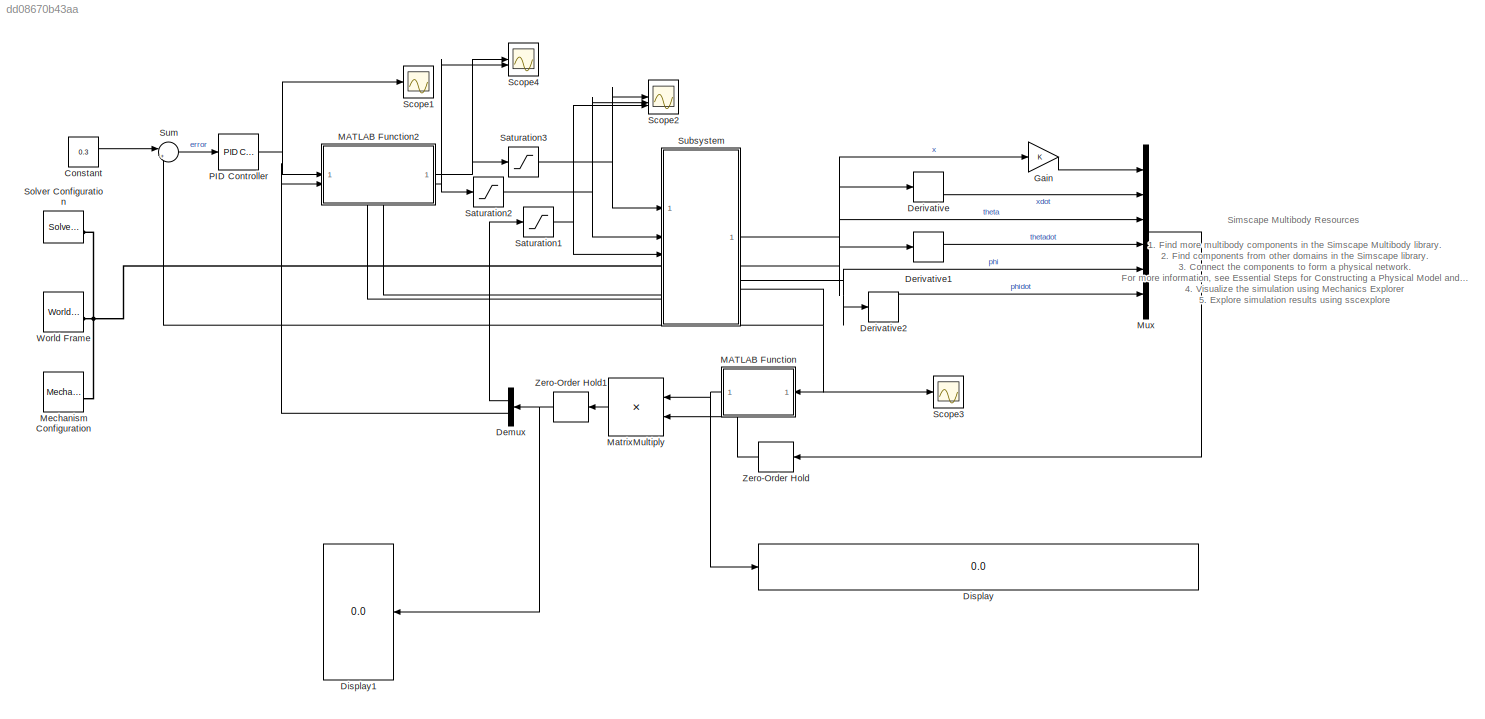
MODEL slx_dd08670b43aa
KIND model
CONFIG AbsTol = 1e-3
CONFIG EnableMultiTasking = on
CONFIG FixedStep = auto
CONFIG MaxStep = auto
CONFIG MinStep = auto
CONFIG RelTol = 1e-3
CONFIG SampleTimeConstraint = Unconstrained
CONFIG SolverName = VariableStepAuto
CONFIG StartTime = 0.0
CONFIG StopTime = 20.0
BLOCK [Constant] Constant
  Value = 0.3
BLOCK [Demux] Demux
  Outputs = 2
BLOCK [Derivative] Derivative
BLOCK [Derivative] Derivative1
BLOCK [Derivative] Derivative2
BLOCK [Display] Display
  Decimation = 1
BLOCK [Display] Display1
  Decimation = 1
BLOCK [Gain] Gain
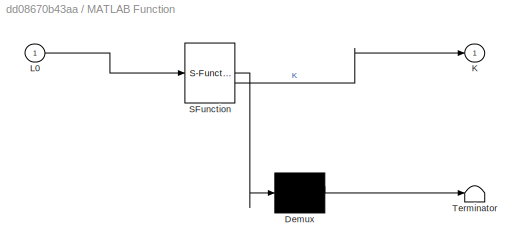
BLOCK [SubSystem] MATLAB Function
  ErrorFcn = Stateflow.Translate.translate
  NameLocation = top
  PermitHierarchicalResolution = ExplicitOnly
  SFBlockType = MATLAB Function
  TreatAsAtomicUnit = on
BLOCK [Demux] MATLAB Function/ Demux 
  Outputs = 1
BLOCK [S-Function] MATLAB Function/ SFunction 
  EnableBusSupport = on
  FunctionName = sf_sfun
  PortCounts = [1 2]
  SFcnIsStateOwnerBlock = off
  SFunctionDeploymentMode = off
  Tag = Stateflow S-Function 2
BLOCK [Terminator] MATLAB Function/ Terminator 
BLOCK [Outport] MATLAB Function/K
BLOCK [Inport] MATLAB Function/L0
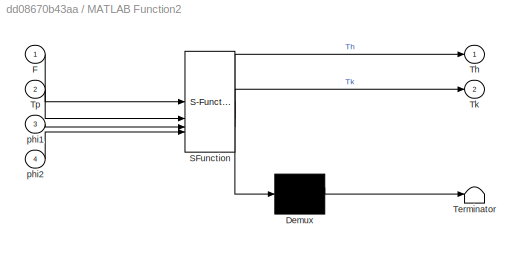
BLOCK [SubSystem] MATLAB Function2
  ErrorFcn = Stateflow.Translate.translate
  PermitHierarchicalResolution = ExplicitOnly
  SFBlockType = MATLAB Function
  TreatAsAtomicUnit = on
BLOCK [Demux] MATLAB Function2/ Demux 
  Outputs = 1
BLOCK [S-Function] MATLAB Function2/ SFunction 
  EnableBusSupport = on
  FunctionName = sf_sfun
  PortCounts = [4 3]
  SFcnIsStateOwnerBlock = off
  SFunctionDeploymentMode = off
  Tag = Stateflow S-Function 3
BLOCK [Terminator] MATLAB Function2/ Terminator 
BLOCK [Inport] MATLAB Function2/F
BLOCK [Outport] MATLAB Function2/Th
BLOCK [Outport] MATLAB Function2/Tk
  Port = 2
BLOCK [Inport] MATLAB Function2/Tp
  Port = 2
BLOCK [Inport] MATLAB Function2/phi1
  Port = 3
BLOCK [Inport] MATLAB Function2/phi2
  Port = 4
BLOCK [Product] MatrixMultiply
  Multiplication = Matrix(*)
BLOCK [Reference] Mechanism Configuration  REF=sm_lib/Utilities/Mechanism
Configuration
  SourceBlock = sm_lib/Utilities/Mechanism\nConfiguration
  SourceType = Mechanism\nConfiguration
BLOCK [Mux] Mux
  DisplayOption = bar
  Inputs = 6
BLOCK [Reference] PID Controller  REF=slpidlib/PID Controller
  LibrarySourceBlock = simulink/Continuous/PID Controller
  SourceBlock = slpidlib/PID Controller
  SourceType = PID 1dof
BLOCK [Saturate] Saturation1
  LowerLimit = -4
  UpperLimit = 4
BLOCK [Saturate] Saturation2
  LowerLimit = -15
  UpperLimit = 15
BLOCK [Saturate] Saturation3
  LowerLimit = -15
  UpperLimit = 15
BLOCK [Scope] Scope1
  Floating = off
  NumInputPorts = 1
  ScopeSpecificationString = Simulink.scopes.TimeScopeBlockCfg('CurrentConfiguration', extmgr.ConfigurationSet(extmgr.Configuration('Core','General UI',true),extmgr.Configuration('Core','Source UI',true),extmgr.Configuration('Sources','WiredSimulink',true,'DataLoggingVariableName','ScopeData3'),extmgr.Configuration('Visuals','Time Domain',true,'SerializedDisplays',{struct('MinYLimReal','-60.96148','MaxYLimReal','5.57842','YLa...<+1495ch>
BLOCK [Scope] Scope2
  Floating = off
  NumInputPorts = 3
  ScopeSpecificationString = Simulink.scopes.TimeScopeBlockCfg('CurrentConfiguration', extmgr.ConfigurationSet(extmgr.Configuration('Core','General UI',true),extmgr.Configuration('Core','Source UI',true),extmgr.Configuration('Sources','WiredSimulink',true,'DataLoggingVariableName','ScopeData4'),extmgr.Configuration('Visuals','Time Domain',true,'SerializedDisplays',{struct('MinYLimReal','-3.54061','MaxYLimReal','6.54795','YLab...<+1494ch>
BLOCK [Scope] Scope3
  Floating = off
  NumInputPorts = 1
  ScopeSpecificationString = Simulink.scopes.TimeScopeBlockCfg('CurrentConfiguration', extmgr.ConfigurationSet(extmgr.Configuration('Core','General UI',true),extmgr.Configuration('Core','Source UI',true),extmgr.Configuration('Sources','WiredSimulink',true,'DataLoggingVariableName','ScopeData1'),extmgr.Configuration('Visuals','Time Domain',true,'SerializedDisplays',{struct('MinYLimReal','-0.01248','MaxYLimReal','0.6125','YLabe...<+1506ch>
BLOCK [Scope] Scope4
  Floating = off
  NumInputPorts = 2
  ScopeSpecificationString = Simulink.scopes.TimeScopeBlockCfg('CurrentConfiguration', extmgr.ConfigurationSet(extmgr.Configuration('Core','General UI',true),extmgr.Configuration('Core','Source UI',true),extmgr.Configuration('Sources','WiredSimulink',true,'DataLoggingVariableName','ScopeData1'),extmgr.Configuration('Visuals','Time Domain',true,'SerializedDisplays',{struct('MinYLimReal','-2926.03685','MaxYLimReal','2803.45519'...<+1543ch>
BLOCK [Reference] Solver Configuration  REF=nesl_utility/Solver
Configuration
  SourceBlock = nesl_utility/Solver\nConfiguration
  SourceType = Solver\nConfiguration
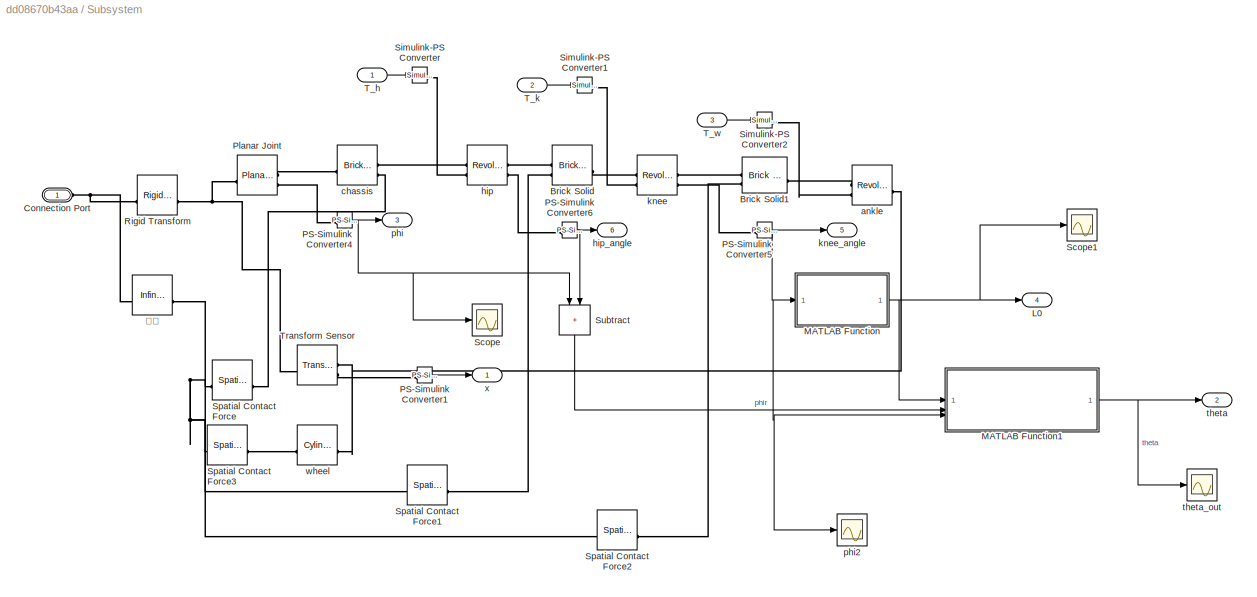
BLOCK [SubSystem] Subsystem
  PortSchema = {"entries":[{"content":{"sides":[{"content":{"connectorIds":["In1","In2","In3","Out5","Out6","LConn1"]},"type":"ConnectorPlacement.EquallySpacedRectSide","uuid":"1748e4b1-1b4d-479e-bbe5-0ce40ec74b27"},{"content":{"connectorIds":["Out1","Out2","Out3","Out4"],"side":"RIGHT"},"type":"ConnectorPlacement.EquallySpacedRectSide","uuid":"fc36e808-e030-49cf-8e60-2e10c8c8424d"},{"content":{"side":"TOP"},"ty...<+278ch>
BLOCK [Reference] Subsystem/Brick Solid  REF=sm_lib/Body Elements/Brick Solid
  SourceBlock = sm_lib/Body Elements/Brick Solid
  SourceType = Brick Solid
BLOCK [Reference] Subsystem/Brick Solid1  REF=sm_lib/Body Elements/Brick Solid
  SourceBlock = sm_lib/Body Elements/Brick Solid
  SourceType = Brick Solid
BLOCK [PMIOPort] Subsystem/Connection Port
  Side = Left
BLOCK [Outport] Subsystem/L0
  Port = 4
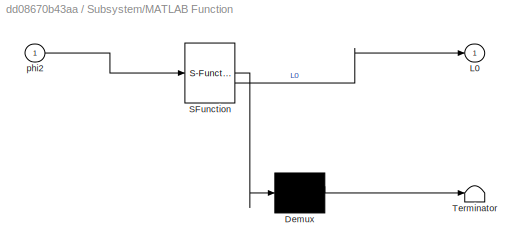
BLOCK [SubSystem] Subsystem/MATLAB Function
  ErrorFcn = Stateflow.Translate.translate
  PermitHierarchicalResolution = ExplicitOnly
  SFBlockType = MATLAB Function
  TreatAsAtomicUnit = on
BLOCK [Demux] Subsystem/MATLAB Function/ Demux 
  Outputs = 1
BLOCK [S-Function] Subsystem/MATLAB Function/ SFunction 
  EnableBusSupport = on
  FunctionName = sf_sfun
  PortCounts = [1 2]
  SFcnIsStateOwnerBlock = off
  SFunctionDeploymentMode = off
  Tag = Stateflow S-Function 4
BLOCK [Terminator] Subsystem/MATLAB Function/ Terminator 
BLOCK [Outport] Subsystem/MATLAB Function/L0
BLOCK [Inport] Subsystem/MATLAB Function/phi2
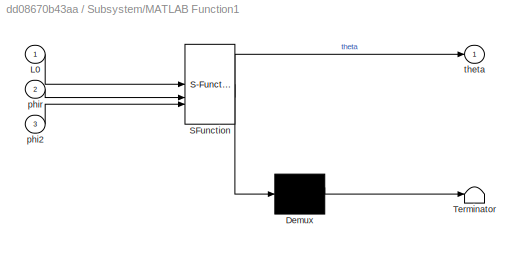
BLOCK [SubSystem] Subsystem/MATLAB Function1
  ErrorFcn = Stateflow.Translate.translate
  PermitHierarchicalResolution = ExplicitOnly
  SFBlockType = MATLAB Function
  TreatAsAtomicUnit = on
BLOCK [Demux] Subsystem/MATLAB Function1/ Demux 
  Outputs = 1
BLOCK [S-Function] Subsystem/MATLAB Function1/ SFunction 
  EnableBusSupport = on
  FunctionName = sf_sfun
  PortCounts = [3 2]
  SFcnIsStateOwnerBlock = off
  SFunctionDeploymentMode = off
  Tag = Stateflow S-Function 5
BLOCK [Terminator] Subsystem/MATLAB Function1/ Terminator 
BLOCK [Inport] Subsystem/MATLAB Function1/L0
BLOCK [Inport] Subsystem/MATLAB Function1/phi2
  Port = 3
BLOCK [Inport] Subsystem/MATLAB Function1/phir
  Port = 2
BLOCK [Outport] Subsystem/MATLAB Function1/theta
BLOCK [Reference] Subsystem/PS-Simulink Converter1  REF=nesl_utility/PS-Simulink
Converter
  SourceBlock = nesl_utility/PS-Simulink\nConverter
  SourceType = PS-Simulink\nConverter
BLOCK [Reference] Subsystem/PS-Simulink Converter4  REF=nesl_utility/PS-Simulink
Converter
  SourceBlock = nesl_utility/PS-Simulink\nConverter
  SourceType = PS-Simulink\nConverter
BLOCK [Reference] Subsystem/PS-Simulink Converter5  REF=nesl_utility/PS-Simulink
Converter
  SourceBlock = nesl_utility/PS-Simulink\nConverter
  SourceType = PS-Simulink\nConverter
BLOCK [Reference] Subsystem/PS-Simulink Converter6  REF=nesl_utility/PS-Simulink
Converter
  SourceBlock = nesl_utility/PS-Simulink\nConverter
  SourceType = PS-Simulink\nConverter
BLOCK [Reference] Subsystem/Planar Joint  REF=sm_lib/Joints/Planar Joint
  SourceBlock = sm_lib/Joints/Planar Joint
  SourceType = Planar Joint
BLOCK [Reference] Subsystem/Rigid Transform  REF=sm_lib/Frames and
Transforms/Rigid
Transform
  SourceBlock = sm_lib/Frames and\nTransforms/Rigid\nTransform
  SourceType = Rigid\nTransform
BLOCK [Scope] Subsystem/Scope
  Floating = off
  NumInputPorts = 1
  ScopeSpecificationString = Simulink.scopes.TimeScopeBlockCfg('CurrentConfiguration', extmgr.ConfigurationSet(extmgr.Configuration('Core','General UI',true),extmgr.Configuration('Core','Source UI',true),extmgr.Configuration('Sources','WiredSimulink',true,'DataLoggingVariableName','ScopeData1'),extmgr.Configuration('Visuals','Time Domain',true,'SerializedDisplays',{struct('MinYLimReal','-0.18101','MaxYLimReal','0.14256','YLab...<+1470ch>
BLOCK [Scope] Subsystem/Scope1
  Floating = off
  NumInputPorts = 1
  ScopeSpecificationString = Simulink.scopes.TimeScopeBlockCfg('CurrentConfiguration', extmgr.ConfigurationSet(extmgr.Configuration('Core','General UI',true),extmgr.Configuration('Core','Source UI',true),extmgr.Configuration('Sources','WiredSimulink',true,'DataLoggingVariableName','ScopeData2'),extmgr.Configuration('Visuals','Time Domain',true,'SerializedDisplays',{struct('MinYLimReal','-0.0125','MaxYLimReal','0.6125','YLabel...<+1508ch>
BLOCK [Reference] Subsystem/Simulink-PS Converter  REF=nesl_utility/Simulink-PS
Converter
  SourceBlock = nesl_utility/Simulink-PS\nConverter
  SourceType = Simulink-PS\nConverter
BLOCK [Reference] Subsystem/Simulink-PS Converter1  REF=nesl_utility/Simulink-PS
Converter
  SourceBlock = nesl_utility/Simulink-PS\nConverter
  SourceType = Simulink-PS\nConverter
BLOCK [Reference] Subsystem/Simulink-PS Converter2  REF=nesl_utility/Simulink-PS
Converter
  SourceBlock = nesl_utility/Simulink-PS\nConverter
  SourceType = Simulink-PS\nConverter
BLOCK [Reference] Subsystem/Spatial Contact Force  REF=sm_lib/Forces and
Torques/Spatial
Contact Force
  SourceBlock = sm_lib/Forces and\nTorques/Spatial\nContact Force
  SourceType = Spatial\nContact Force
BLOCK [Reference] Subsystem/Spatial Contact Force1  REF=sm_lib/Forces and
Torques/Spatial
Contact Force
  SourceBlock = sm_lib/Forces and\nTorques/Spatial\nContact Force
  SourceType = Spatial\nContact Force
BLOCK [Reference] Subsystem/Spatial Contact Force2  REF=sm_lib/Forces and
Torques/Spatial
Contact Force
  SourceBlock = sm_lib/Forces and\nTorques/Spatial\nContact Force
  SourceType = Spatial\nContact Force
BLOCK [Reference] Subsystem/Spatial Contact Force3  REF=sm_lib/Forces and
Torques/Spatial
Contact Force
  SourceBlock = sm_lib/Forces and\nTorques/Spatial\nContact Force
  SourceType = Spatial\nContact Force
BLOCK [Sum] Subsystem/Subtract
  IconShape = rectangular
  NameLocation = right
BLOCK [Inport] Subsystem/T_h
BLOCK [Inport] Subsystem/T_k
  Port = 2
BLOCK [Inport] Subsystem/T_w
  Port = 3
BLOCK [Reference] Subsystem/Transform Sensor  REF=sm_lib/Frames and
Transforms/Transform
Sensor
  SourceBlock = sm_lib/Frames and\nTransforms/Transform\nSensor
  SourceType = Transform\nSensor
BLOCK [Reference] Subsystem/ankle  REF=sm_lib/Joints/Revolute Joint
  SourceBlock = sm_lib/Joints/Revolute Joint
  SourceType = Revolute Joint
BLOCK [Reference] Subsystem/chassis  REF=sm_lib/Body Elements/Brick Solid
  SourceBlock = sm_lib/Body Elements/Brick Solid
  SourceType = Brick Solid
BLOCK [Reference] Subsystem/hip  REF=sm_lib/Joints/Revolute Joint
  SourceBlock = sm_lib/Joints/Revolute Joint
  SourceType = Revolute Joint
BLOCK [Outport] Subsystem/hip_angle
  Port = 6
BLOCK [Reference] Subsystem/knee  REF=sm_lib/Joints/Revolute Joint
  SourceBlock = sm_lib/Joints/Revolute Joint
  SourceType = Revolute Joint
BLOCK [Outport] Subsystem/knee_angle
  Port = 5
BLOCK [Outport] Subsystem/phi
  Port = 3
BLOCK [Scope] Subsystem/phi2
  Floating = off
  NumInputPorts = 1
  ScopeSpecificationString = Simulink.scopes.TimeScopeBlockCfg('CurrentConfiguration', extmgr.ConfigurationSet(extmgr.Configuration('Core','General UI',true),extmgr.Configuration('Core','Source UI',true),extmgr.Configuration('Sources','WiredSimulink',true,'DataLoggingVariableName','ScopeData2'),extmgr.Configuration('Visuals','Time Domain',true,'SerializedDisplays',{struct('MinYLimReal','1.78429','MaxYLimReal','2.45467','YLabe...<+1479ch>
BLOCK [Outport] Subsystem/theta
  Port = 2
BLOCK [Scope] Subsystem/theta_out
  Floating = off
  NumInputPorts = 1
  ScopeSpecificationString = Simulink.scopes.TimeScopeBlockCfg('CurrentConfiguration', extmgr.ConfigurationSet(extmgr.Configuration('Core','General UI',true),extmgr.Configuration('Core','Source UI',true),extmgr.Configuration('Sources','WiredSimulink',true,'DataLoggingVariableName','ScopeData1'),extmgr.Configuration('Visuals','Time Domain',true,'SerializedDisplays',{struct('MinYLimReal','-7.6652','MaxYLimReal','3.24117','YLabe...<+1497ch>
BLOCK [Reference] Subsystem/wheel  REF=sm_lib/Body Elements/Cylindrical Solid
  SourceBlock = sm_lib/Body Elements/Cylindrical Solid
  SourceType = Cylindrical Solid
BLOCK [Outport] Subsystem/x
BLOCK [Reference] Subsystem/地面  REF=sm_lib/Curves and Surfaces/Infinite Plane
  SourceBlock = sm_lib/Curves and Surfaces/Infinite Plane
  SourceType = Infinite Plane
BLOCK [Sum] Sum
  Inputs = |+-
BLOCK [Reference] World Frame  REF=sm_lib/Frames and
Transforms/World Frame
  SourceBlock = sm_lib/Frames and\nTransforms/World Frame
  SourceType = World Frame
BLOCK [ZeroOrderHold] Zero-Order Hold
  NameLocation = top
  SampleTime = 0.001
BLOCK [ZeroOrderHold] Zero-Order Hold1
  NameLocation = top
  SampleTime = 0.001
ANNOTATION (root): 1. Find more multibody components in the Simscape Multibody library . 2. Find components from other domains in the Simscape library . 3. Connect the components to form a physical network. For more information, see Essential Steps for Constructing a Physical Model and Creating a Multibody Model . 4. Visualize the simulation using Mechanics Explorer 5. Explore simulation results using sscexplore
ANNOTATION (root): Simscape Multibody Resources
LINE Constant:1 -> Sum:1
LINE Demux:1 -> Saturation1:1
LINE Demux:2 -> MATLAB Function2:2
LINE Derivative1:1 -> Mux:4
LINE Derivative2:1 -> Mux:6
LINE Derivative:1 -> Mux:2
LINE Gain:1 -> Mux:1
NET MATLAB Function2:1 -> Saturation3:1, Scope4:1
NET MATLAB Function2:2 -> Saturation2:1, Scope4:2
NET MATLAB Function:1 -> Display:1, MatrixMultiply:1
LINE MatrixMultiply:1 -> Zero-Order Hold1:1
LINE Mux:1 -> Zero-Order Hold:1
NET PID Controller:1 -> MATLAB Function2:1, Scope1:1
NET Saturation1:1 -> Scope2:3, Subsystem:3
NET Saturation2:1 -> Scope2:2, Subsystem:2
NET Saturation3:1 -> Scope2:1, Subsystem:1
NET Subsystem/MATLAB Function1:1 -> Subsystem/theta:1, Subsystem/theta_out:1
NET Subsystem/MATLAB Function:1 -> Subsystem/L0:1, Subsystem/MATLAB Function1:1, Subsystem/Scope1:1
LINE Subsystem/PS-Simulink Converter1:1 -> Subsystem/x:1
NET Subsystem/PS-Simulink Converter4:1 -> Subsystem/Scope:1, Subsystem/Subtract:1, Subsystem/phi:1
NET Subsystem/PS-Simulink Converter5:1 -> Subsystem/MATLAB Function1:3, Subsystem/MATLAB Function:1, Subsystem/knee_angle:1, Subsystem/phi2:1
NET Subsystem/PS-Simulink Converter6:1 -> Subsystem/Subtract:2, Subsystem/hip_angle:1
LINE Subsystem/Subtract:1 -> Subsystem/MATLAB Function1:2
LINE Subsystem/T_h:1 -> Subsystem/Simulink-PS Converter:1
LINE Subsystem/T_k:1 -> Subsystem/Simulink-PS Converter1:1
LINE Subsystem/T_w:1 -> Subsystem/Simulink-PS Converter2:1
NET Subsystem:1 -> Derivative:1, Gain:1
NET Subsystem:2 -> Derivative1:1, Mux:3
NET Subsystem:3 -> Derivative2:1, Mux:5
NET Subsystem:4 -> MATLAB Function:1, Scope3:1, Sum:2
LINE Subsystem:5 -> MATLAB Function2:4
LINE Subsystem:6 -> MATLAB Function2:3
LINE Sum:1 -> PID Controller:1
NET Zero-Order Hold1:1 -> Demux:1, Display1:1
LINE Zero-Order Hold:1 -> MatrixMultiply:2
PNET net1: Mechanism Configuration:RConn1 -- Solver Configuration:RConn1 -- Subsystem:LConn1 -- World Frame:RConn1
PLINE Subsystem/Brick Solid1:LConn1 -- Subsystem/knee:RConn1
PLINE Subsystem/Brick Solid1:LConn2 -- Subsystem/Spatial Contact Force2:RConn1
PLINE Subsystem/Brick Solid1:RConn1 -- Subsystem/ankle:LConn1
PLINE Subsystem/Brick Solid:LConn1 -- Subsystem/hip:RConn1
PLINE Subsystem/Brick Solid:LConn2 -- Subsystem/Spatial Contact Force1:RConn1
PLINE Subsystem/Brick Solid:RConn1 -- Subsystem/knee:LConn1
PNET net2: Subsystem/Connection Port:RConn1 -- Subsystem/Rigid Transform:LConn1 -- Subsystem/地面:LConn1
PLINE Subsystem/PS-Simulink Converter1:LConn1 -- Subsystem/Transform Sensor:RConn2
PLINE Subsystem/PS-Simulink Converter4:LConn1 -- Subsystem/Planar Joint:RConn2
PLINE Subsystem/PS-Simulink Converter5:LConn1 -- Subsystem/knee:RConn2
PLINE Subsystem/PS-Simulink Converter6:LConn1 -- Subsystem/hip:RConn2
PNET net3: Subsystem/Planar Joint:LConn1 -- Subsystem/Rigid Transform:RConn1 -- Subsystem/Transform Sensor:LConn1
PLINE Subsystem/Planar Joint:RConn1 -- Subsystem/chassis:RConn1
PLINE Subsystem/Simulink-PS Converter1:RConn1 -- Subsystem/knee:LConn2
PLINE Subsystem/Simulink-PS Converter2:RConn1 -- Subsystem/ankle:LConn2
PLINE Subsystem/Simulink-PS Converter:RConn1 -- Subsystem/hip:LConn2
PNET net4: Subsystem/Spatial Contact Force1:LConn1 -- Subsystem/Spatial Contact Force2:LConn1 -- Subsystem/Spatial Contact Force3:LConn1 -- Subsystem/Spatial Contact Force:LConn1 -- Subsystem/地面:RConn1
PLINE Subsystem/Spatial Contact Force3:RConn1 -- Subsystem/wheel:LConn1
PLINE Subsystem/Spatial Contact Force:RConn1 -- Subsystem/chassis:LConn2
PNET net5: Subsystem/Transform Sensor:RConn1 -- Subsystem/ankle:RConn1 -- Subsystem/wheel:RConn1
PLINE Subsystem/chassis:LConn1 -- Subsystem/hip:LConn1
note: NET lines group one-source signal fan-out (src -> all destinations, sorted); 1:1 wires keep LINE; PNET lines group multi-terminal physical nets as a canonical sorted terminal list (undirected conserving connections); 2-terminal nets keep the pairwise PLINE form
CHART MATLAB Function states=1 transitions=1
  STATE_LABEL 'eML_blk_kernel()'
  STATE_LABEL "SCRIPT:\nfunction K = get_K_L0(L0)\n    persistent L0_vals Ks\n\n    if isempty(L0_vals)\n        data = load('K_lookup_data_good.mat');\n        L0_vals = data.L0_calc;\n        Ks = data.Ks;\n    end\n\n    % Bound the input (avoid extrapolation errors)\n    L0 = max(min(L0, max(L0_vals)), min(L0_vals));\n\n    % Find the closest L0 index\n    [~, idx] = min(abs(L0_vals - L0));\n    K = Ks(:,:,idx);\n\n    % Ext...<+49ch>"
CHART MATLAB Function2 states=1 transitions=1
  STATE_LABEL 'eML_blk_kernel()'
  STATE_LABEL 'SCRIPT:\nfunction [Th,Tk] = VMC(F,Tp,phi1,phi2)\n\n    if phi2 < 0\n        phi2 = -phi2;\n    end\n    \n    tau = leg_convolution(F,Tp,phi1,phi2);\n\n    Th = tau(1)-Tp; %hip\n    Tk = tau(2); %knee\nend\n'
CHART Subsystem/MATLAB Function states=1 transitions=1
  STATE_LABEL 'eML_blk_kernel()'
  STATE_LABEL 'SCRIPT:\nfunction L0 = L0_calculation(phi2)\n    a = pi - phi2;\n    l1 = 0.25; %thigh link length\n    l2 = 0.3; %calf link length\n\n    squrl1 = l1^2;\n    squrl2 = l2^2;\n    L0 = sqrt((squrl1+squrl2)-(2*l1*l2*cos(a)));\n    \nend\n'
CHART Subsystem/MATLAB Function1 states=1 transitions=1
  STATE_LABEL 'eML_blk_kernel()'
  STATE_LABEL 'SCRIPT:\nfunction theta = internal_leg_angle(L0,phir,phi2)\n    %leg lengths\n    l1 = 0.25; %thigh  (c in trig)\n    l2 = 0.3; %calf   (b in trig)\n    square_l1 = l1^2;\n    square_l2 = l2^2;\n    square_L0 = L0^2;\n\n    numerator = square_l1+square_l2-square_L0;\n\n    %A = acos((numerator)/(2*l1*l2));\n\n    %alternative calc  vvv\n    A = pi - phi2;\n\n    numerator1 = sin(A)*l2;\n    B = asin(numerator1/L0)...<+74ch>'
CHART  states=0 transitions=0
CHART  states=0 transitions=0
CHART  states=0 transitions=0
CHART  states=0 transitions=0
